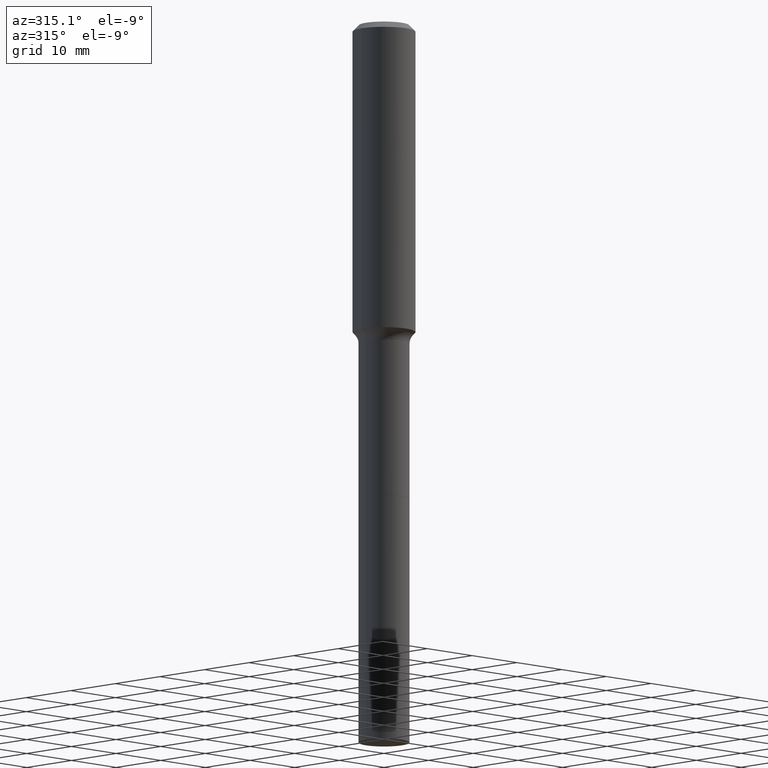
[diagram: clean part render]
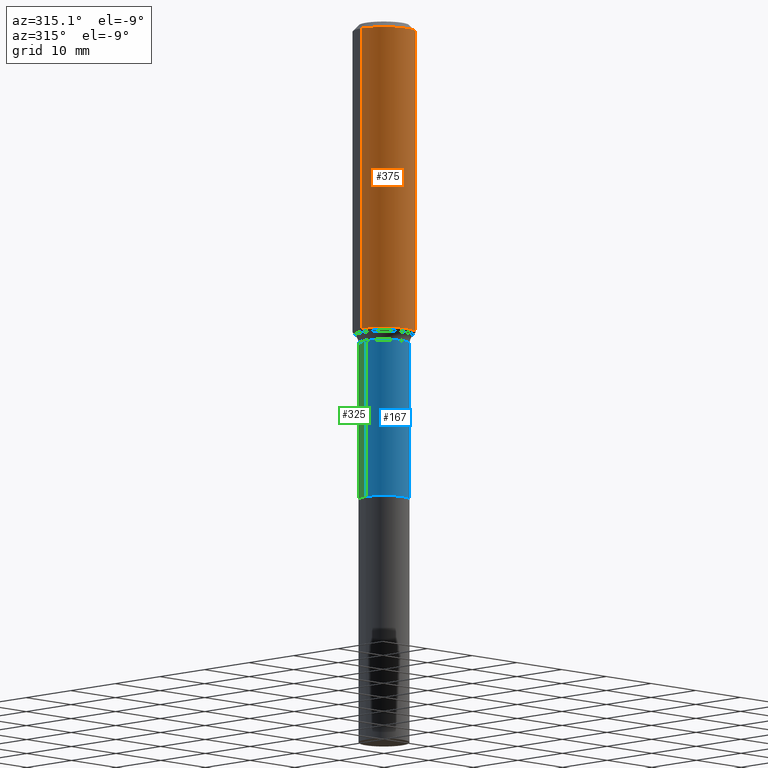
[diagram: same view with three faces highlighted in distinct colors, each labeled with its STEP entity id]
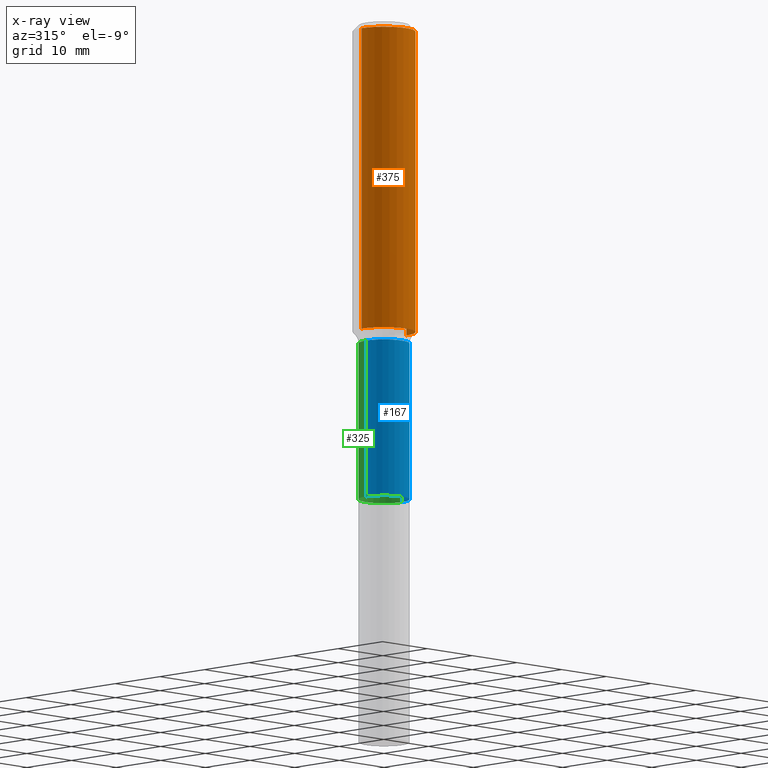
[diagram: x-ray of the same camera — body ghosted, the three highlighted faces saturated]
A machine part, auxiliary view with three faces highlighted in distinct colors.
The next image is the same camera in x-ray (body ghosted, the three faces saturated) — at least one of them is partly hidden behind the body in this view.
Their STEP definitions:

[orange] entity #375 — the highlighted cylindrical surface (edge-blend (fillet) strip) has radius 5 mm, axis along (-0, 0, 1).
#16 = EDGE_CURVE ( 'NONE', #395, #198, #453, .T. ) ;
#28 = EDGE_CURVE ( 'NONE', #369, #68, #243, .T. ) ;
#31 = ORIENTED_EDGE ( 'NONE', *, *, #344, .T. ) ;
#38 = CARTESIAN_POINT ( 'NONE',  ( 0.1968500000000002470, -8.134036243287336255E-15, -1.935980572195880711 ) ) ;
#65 = ORIENTED_EDGE ( 'NONE', *, *, #266, .F. ) ;
#68 = VERTEX_POINT ( 'NONE', #322 ) ;
#75 = DIRECTION ( 'NONE',  ( -2.445468806185136597E-29, 3.491481338843145583E-15, 1.000000000000000000 ) ) ;
#123 = CARTESIAN_POINT ( 'NONE',  ( 0.1968500000000001082, -1.374596203102542397E-15, 9.598753983154305062E-30 ) ) ;
#140 = DIRECTION ( 'NONE',  ( -2.445468806185136597E-29, 3.491481338843145583E-15, 1.000000000000000000 ) ) ;
#159 = VECTOR ( 'NONE', #446, 39.37007874015748143 ) ;
#190 = ORIENTED_EDGE ( 'NONE', *, *, #28, .F. ) ;
#198 = VERTEX_POINT ( 'NONE', #392 ) ;
#215 = CIRCLE ( 'NONE', #246, 0.1968500000000002470 ) ;
#234 = DIRECTION ( 'NONE',  ( -2.445468806185136597E-29, 3.491481338843145583E-15, 1.000000000000000000 ) ) ;
#236 = DIRECTION ( 'NONE',  ( 1.000000000000000000, -6.982962677686266711E-15, 4.876176775795935793E-29 ) ) ;
#237 = CIRCLE ( 'NONE', #515, 0.1968500000000000250 ) ;
#243 = LINE ( 'NONE', #405, #255 ) ;
#246 = AXIS2_PLACEMENT_3D ( 'NONE', #447, #234, #479 ) ;
#253 = DIRECTION ( 'NONE',  ( -2.445468806185136877E-29, 3.491481338843145188E-15, 1.000000000000000000 ) ) ;
#255 = VECTOR ( 'NONE', #253, 39.37007874015748143 ) ;
#266 = EDGE_CURVE ( 'NONE', #68, #198, #237, .T. ) ;
#273 = ORIENTED_EDGE ( 'NONE', *, *, #16, .T. ) ;
#300 = DIRECTION ( 'NONE',  ( 1.000000000000000000, -6.982962677686265922E-15, 0.000000000000000000 ) ) ;
#322 = CARTESIAN_POINT ( 'NONE',  ( -0.1968500000000000250, -2.049746454903765749E-15, -0.03937000000000026589 ) ) ;
#336 = AXIS2_PLACEMENT_3D ( 'NONE', #472, #75, #236 ) ;
#344 = EDGE_CURVE ( 'NONE', #369, #395, #215, .T. ) ;
#368 = FACE_OUTER_BOUND ( 'NONE', #384, .T. ) ;
#369 = VERTEX_POINT ( 'NONE', #404 ) ;
#375 = ADVANCED_FACE ( 'NONE', ( #368 ), #443, .T. ) ;
#384 = EDGE_LOOP ( 'NONE', ( #190, #31, #273, #65 ) ) ;
#392 = CARTESIAN_POINT ( 'NONE',  ( 0.1968500000000000250, -1.512055823412797189E-15, -0.03937000000000026589 ) ) ;
#395 = VERTEX_POINT ( 'NONE', #38 ) ;
#404 = CARTESIAN_POINT ( 'NONE',  ( -0.1968500000000002470, -5.360736664841032915E-15, -1.935980572195880711 ) ) ;
#405 = CARTESIAN_POINT ( 'NONE',  ( -0.1968500000000001082, 1.398703375343757985E-15, -9.682923725166787881E-30 ) ) ;
#443 = CYLINDRICAL_SURFACE ( 'NONE', #336, 0.1968500000000001082 ) ;
#446 = DIRECTION ( 'NONE',  ( -2.445468806185136877E-29, 3.491481338843145188E-15, 1.000000000000000000 ) ) ;
#447 = CARTESIAN_POINT ( 'NONE',  ( 4.734380098685478056E-29, -6.759440040184793069E-15, -1.935980572195880711 ) ) ;
#453 = LINE ( 'NONE', #123, #159 ) ;
#472 = CARTESIAN_POINT ( 'NONE',  ( 0.000000000000000000, 0.000000000000000000, 0.000000000000000000 ) ) ;
#479 = DIRECTION ( 'NONE',  ( 1.000000000000000000, -6.982962677686265133E-15, 0.000000000000000000 ) ) ;
#503 = CARTESIAN_POINT ( 'NONE',  ( 9.627810689950948900E-31, -1.374596203102555561E-16, -0.03937000000000026589 ) ) ;
#515 = AXIS2_PLACEMENT_3D ( 'NONE', #503, #140, #300 ) ;

[blue] entity #167 — the highlighted cylindrical surface (edge-blend (fillet) strip) has radius 4.05 mm, axis along (-0, 0, 1).
#3 = EDGE_LOOP ( 'NONE', ( #193, #36, #82, #361 ) ) ;
#7 = AXIS2_PLACEMENT_3D ( 'NONE', #63, #138, #103 ) ;
#8 = DIRECTION ( 'NONE',  ( 1.000000000000000000, -6.982962677686263555E-15, 0.000000000000000000 ) ) ;
#14 = CIRCLE ( 'NONE', #293, 0.1594500000000000639 ) ;
#26 = FACE_OUTER_BOUND ( 'NONE', #3, .T. ) ;
#36 = ORIENTED_EDGE ( 'NONE', *, *, #96, .T. ) ;
#63 = CARTESIAN_POINT ( 'NONE',  ( 0.000000000000000000, 0.000000000000000000, 0.000000000000000000 ) ) ;
#78 = CIRCLE ( 'NONE', #416, 0.1594499999999999251 ) ;
#82 = ORIENTED_EDGE ( 'NONE', *, *, #478, .T. ) ;
#85 = VECTOR ( 'NONE', #220, 39.37007874015748143 ) ;
#96 = EDGE_CURVE ( 'NONE', #179, #116, #14, .T. ) ;
#103 = DIRECTION ( 'NONE',  ( 1.000000000000000000, -6.982962677686267499E-15, 4.876176775795936914E-29 ) ) ;
#106 = CARTESIAN_POINT ( 'NONE',  ( -0.1594499999999999806, 1.132960392169479609E-15, -7.843242001411446535E-30 ) ) ;
#115 = LINE ( 'NONE', #106, #85 ) ;
#116 = VERTEX_POINT ( 'NONE', #200 ) ;
#134 = VECTOR ( 'NONE', #166, 39.37007874015748143 ) ;
#138 = DIRECTION ( 'NONE',  ( -2.445468806185136597E-29, 3.491481338843145583E-15, 1.000000000000000000 ) ) ;
#166 = DIRECTION ( 'NONE',  ( -2.445468806185136877E-29, 3.491481338843145188E-15, 1.000000000000000000 ) ) ;
#167 = ADVANCED_FACE ( 'NONE', ( #26 ), #387, .T. ) ;
#179 = VERTEX_POINT ( 'NONE', #303 ) ;
#193 = ORIENTED_EDGE ( 'NONE', *, *, #208, .F. ) ;
#200 = CARTESIAN_POINT ( 'NONE',  ( 0.1594500000000000639, -1.156029471290964628E-14, -2.992099999999998872 ) ) ;
#208 = EDGE_CURVE ( 'NONE', #179, #434, #115, .T. ) ;
#211 = DIRECTION ( 'NONE',  ( 1.000000000000000000, -6.982962677686263555E-15, 0.000000000000000000 ) ) ;
#220 = DIRECTION ( 'NONE',  ( -2.445468806185136877E-29, 3.491481338843145188E-15, 1.000000000000000000 ) ) ;
#242 = DIRECTION ( 'NONE',  ( -2.445468806185136597E-29, 3.491481338843145583E-15, 1.000000000000000000 ) ) ;
#251 = CARTESIAN_POINT ( 'NONE',  ( 0.1594499999999999806, -1.113433398957075208E-15, 7.775063869006620076E-30 ) ) ;
#259 = DIRECTION ( 'NONE',  ( -2.445468806185136597E-29, 3.491481338843145583E-15, 1.000000000000000000 ) ) ;
#278 = CARTESIAN_POINT ( 'NONE',  ( 0.1594499999999999251, -8.122931334818572439E-15, -2.007599999999999607 ) ) ;
#282 = CARTESIAN_POINT ( 'NONE',  ( 4.909523175297278955E-29, -7.009497935861498019E-15, -2.007599999999999607 ) ) ;
#293 = AXIS2_PLACEMENT_3D ( 'NONE', #457, #259, #211 ) ;
#303 = CARTESIAN_POINT ( 'NONE',  ( -0.1594500000000000639, -7.595219232737553755E-15, -2.992099999999998872 ) ) ;
#355 = VERTEX_POINT ( 'NONE', #278 ) ;
#361 = ORIENTED_EDGE ( 'NONE', *, *, #441, .F. ) ;
#366 = CARTESIAN_POINT ( 'NONE',  ( -0.1594499999999999251, -7.595219232737555333E-15, -2.007599999999999607 ) ) ;
#370 = LINE ( 'NONE', #251, #134 ) ;
#387 = CYLINDRICAL_SURFACE ( 'NONE', #7, 0.1594499999999999806 ) ;
#416 = AXIS2_PLACEMENT_3D ( 'NONE', #282, #242, #8 ) ;
#434 = VERTEX_POINT ( 'NONE', #366 ) ;
#441 = EDGE_CURVE ( 'NONE', #434, #355, #78, .T. ) ;
#457 = CARTESIAN_POINT ( 'NONE',  ( 7.317087214986543751E-29, -1.044686131395257108E-14, -2.992099999999998872 ) ) ;
#478 = EDGE_CURVE ( 'NONE', #116, #355, #370, .T. ) ;

[green] entity #325 — the highlighted cylindrical surface (edge-blend (fillet) strip) has radius 4.05 mm, axis along (-0, 0, 1).
#13 = DIRECTION ( 'NONE',  ( 1.000000000000000000, -6.982962677686263555E-15, 0.000000000000000000 ) ) ;
#37 = AXIS2_PLACEMENT_3D ( 'NONE', #360, #206, #321 ) ;
#41 = DIRECTION ( 'NONE',  ( 1.000000000000000000, -6.982962677686263555E-15, 0.000000000000000000 ) ) ;
#55 = EDGE_CURVE ( 'NONE', #355, #434, #488, .T. ) ;
#71 = ORIENTED_EDGE ( 'NONE', *, *, #208, .T. ) ;
#84 = DIRECTION ( 'NONE',  ( -2.445468806185136597E-29, 3.491481338843145583E-15, 1.000000000000000000 ) ) ;
#85 = VECTOR ( 'NONE', #220, 39.37007874015748143 ) ;
#106 = CARTESIAN_POINT ( 'NONE',  ( -0.1594499999999999806, 1.132960392169479609E-15, -7.843242001411446535E-30 ) ) ;
#115 = LINE ( 'NONE', #106, #85 ) ;
#116 = VERTEX_POINT ( 'NONE', #200 ) ;
#122 = CYLINDRICAL_SURFACE ( 'NONE', #37, 0.1594499999999999806 ) ;
#134 = VECTOR ( 'NONE', #166, 39.37007874015748143 ) ;
#139 = AXIS2_PLACEMENT_3D ( 'NONE', #448, #84, #13 ) ;
#163 = FACE_OUTER_BOUND ( 'NONE', #218, .T. ) ;
#166 = DIRECTION ( 'NONE',  ( -2.445468806185136877E-29, 3.491481338843145188E-15, 1.000000000000000000 ) ) ;
#179 = VERTEX_POINT ( 'NONE', #303 ) ;
#200 = CARTESIAN_POINT ( 'NONE',  ( 0.1594500000000000639, -1.156029471290964628E-14, -2.992099999999998872 ) ) ;
#206 = DIRECTION ( 'NONE',  ( -2.445468806185136597E-29, 3.491481338843145583E-15, 1.000000000000000000 ) ) ;
#208 = EDGE_CURVE ( 'NONE', #179, #434, #115, .T. ) ;
#218 = EDGE_LOOP ( 'NONE', ( #508, #71, #425, #379 ) ) ;
#220 = DIRECTION ( 'NONE',  ( -2.445468806185136877E-29, 3.491481338843145188E-15, 1.000000000000000000 ) ) ;
#240 = CARTESIAN_POINT ( 'NONE',  ( 7.317087214986543751E-29, -1.044686131395257108E-14, -2.992099999999998872 ) ) ;
#251 = CARTESIAN_POINT ( 'NONE',  ( 0.1594499999999999806, -1.113433398957075208E-15, 7.775063869006620076E-30 ) ) ;
#278 = CARTESIAN_POINT ( 'NONE',  ( 0.1594499999999999251, -8.122931334818572439E-15, -2.007599999999999607 ) ) ;
#303 = CARTESIAN_POINT ( 'NONE',  ( -0.1594500000000000639, -7.595219232737553755E-15, -2.992099999999998872 ) ) ;
#321 = DIRECTION ( 'NONE',  ( 1.000000000000000000, -6.982962677686267499E-15, 4.876176775795936914E-29 ) ) ;
#325 = ADVANCED_FACE ( 'NONE', ( #163 ), #122, .T. ) ;
#355 = VERTEX_POINT ( 'NONE', #278 ) ;
#356 = CIRCLE ( 'NONE', #430, 0.1594500000000000639 ) ;
#360 = CARTESIAN_POINT ( 'NONE',  ( 0.000000000000000000, 0.000000000000000000, 0.000000000000000000 ) ) ;
#366 = CARTESIAN_POINT ( 'NONE',  ( -0.1594499999999999251, -7.595219232737555333E-15, -2.007599999999999607 ) ) ;
#370 = LINE ( 'NONE', #251, #134 ) ;
#379 = ORIENTED_EDGE ( 'NONE', *, *, #478, .F. ) ;
#402 = DIRECTION ( 'NONE',  ( -2.445468806185136597E-29, 3.491481338843145583E-15, 1.000000000000000000 ) ) ;
#418 = EDGE_CURVE ( 'NONE', #116, #179, #356, .T. ) ;
#425 = ORIENTED_EDGE ( 'NONE', *, *, #55, .F. ) ;
#430 = AXIS2_PLACEMENT_3D ( 'NONE', #240, #402, #41 ) ;
#434 = VERTEX_POINT ( 'NONE', #366 ) ;
#448 = CARTESIAN_POINT ( 'NONE',  ( 4.909523175297278955E-29, -7.009497935861498019E-15, -2.007599999999999607 ) ) ;
#478 = EDGE_CURVE ( 'NONE', #116, #355, #370, .T. ) ;
#488 = CIRCLE ( 'NONE', #139, 0.1594499999999999251 ) ;
#508 = ORIENTED_EDGE ( 'NONE', *, *, #418, .T. ) ;